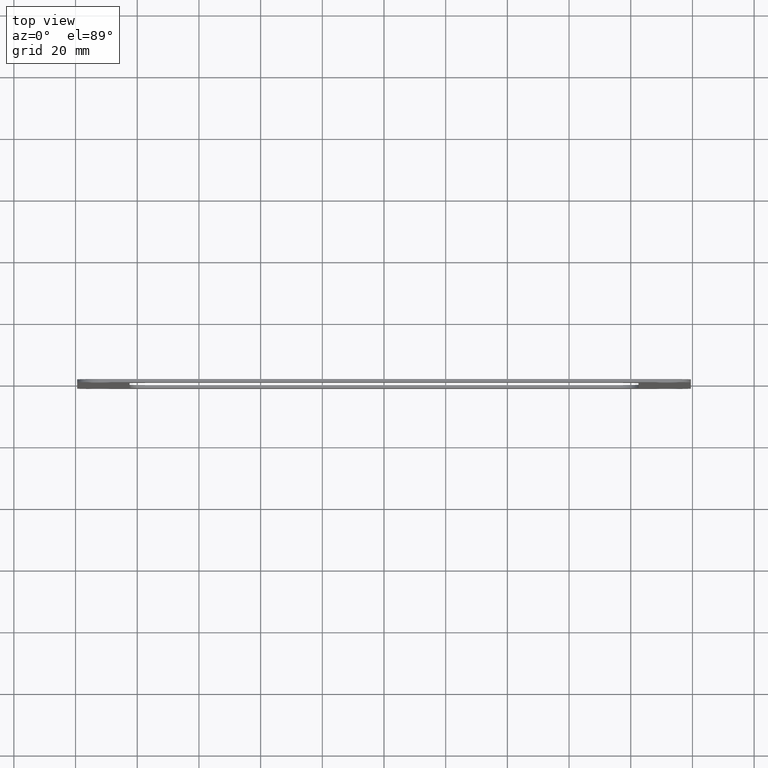
[diagram: clean part render]
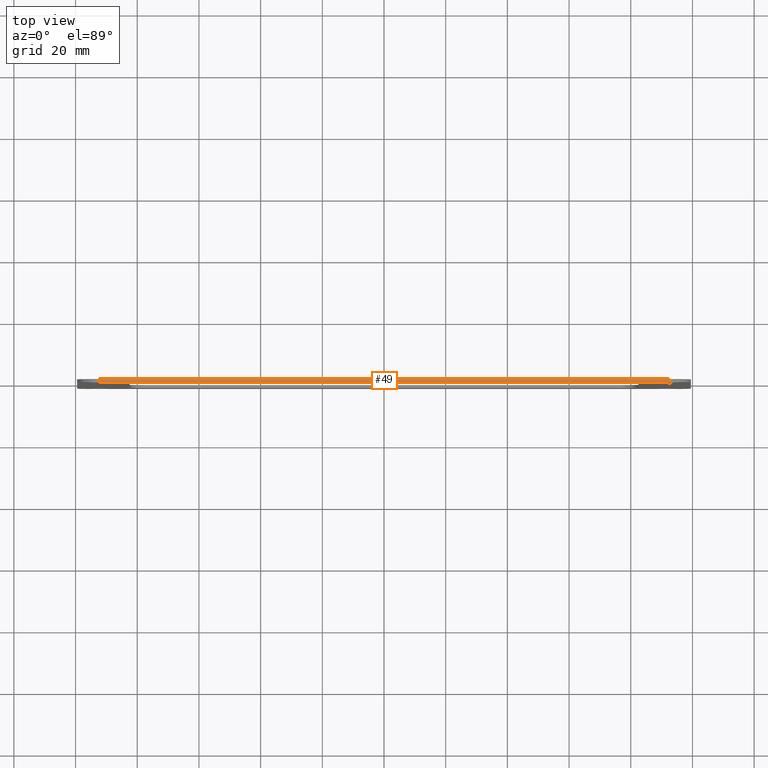
[diagram: same view with one face highlighted and labeled with its STEP entity id]
A machine part, top view. The second image highlights one B-rep face of the part: STEP entity #49.
In plain terms, the highlighted planar face has unit normal (0, -0, 1).
Its self-contained STEP definition (entity closure, byte-faithful):
#49=ADVANCED_FACE('',(#167),#166,.T.);
#166=PLANE('',#394);
#167=FACE_OUTER_BOUND('',#395,.T.);
#391=CARTESIAN_POINT('',(-1.02500000000E+002,-1.10000000000E+000,6.45000000000E+001));
#392=DIRECTION('',(0.00000000000E+000,-0.00000000000E+000,1.00000000000E+000));
#393=DIRECTION('',(1.00000000000E+000,0.00000000000E+000,-0.00000000000E+000));
#394=AXIS2_PLACEMENT_3D('',#391,#392,#393);
#395=EDGE_LOOP('',(#552,#553,#554,#555));
#552=ORIENTED_EDGE('',*,*,#627,.F.);
#553=ORIENTED_EDGE('',*,*,#675,.F.);
#554=ORIENTED_EDGE('',*,*,#645,.T.);
#555=ORIENTED_EDGE('',*,*,#668,.T.);
#627=EDGE_CURVE('',#735,#692,#742,.T.);
#645=EDGE_CURVE('',#868,#860,#869,.T.);
#668=EDGE_CURVE('',#860,#692,#1028,.T.);
#675=EDGE_CURVE('',#868,#735,#1070,.T.);
#692=VERTEX_POINT('',#1172);
#735=VERTEX_POINT('',#1200);
#742=LINE('',#1205,#1206);
#860=VERTEX_POINT('',#1284);
#868=VERTEX_POINT('',#1290);
#869=LINE('',#1291,#1292);
#1028=LINE('',#1396,#1397);
#1070=LINE('',#1417,#1418);
#1172=CARTESIAN_POINT('',(-9.25000000000E+001,-1.00000000000E+000,6.45000000000E+001));
#1200=CARTESIAN_POINT('',(9.25000000000E+001,-1.00000000000E+000,6.45000000000E+001));
#1205=CARTESIAN_POINT('',(9.25000000000E+001,-1.00000000000E+000,6.45000000000E+001));
#1206=VECTOR('',#1207,1.85000000000E+002);
#1207=DIRECTION('',(-1.00000000000E+000,0.00000000000E+000,0.00000000000E+000));
#1284=CARTESIAN_POINT('',(-9.25000000000E+001,0.00000000000E+000,6.45000000000E+001));
#1290=CARTESIAN_POINT('',(9.25000000000E+001,0.00000000000E+000,6.45000000000E+001));
#1291=CARTESIAN_POINT('',(9.25000000000E+001,0.00000000000E+000,6.45000000000E+001));
#1292=VECTOR('',#1293,1.85000000000E+002);
#1293=DIRECTION('',(-1.00000000000E+000,0.00000000000E+000,0.00000000000E+000));
#1396=CARTESIAN_POINT('',(-9.25000000000E+001,0.00000000000E+000,6.45000000000E+001));
#1397=VECTOR('',#1398,1.00000000000E+000);
#1398=DIRECTION('',(0.00000000000E+000,-1.00000000000E+000,0.00000000000E+000));
#1417=CARTESIAN_POINT('',(9.25000000000E+001,0.00000000000E+000,6.45000000000E+001));
#1418=VECTOR('',#1419,1.00000000000E+000);
#1419=DIRECTION('',(0.00000000000E+000,-1.00000000000E+000,0.00000000000E+000));